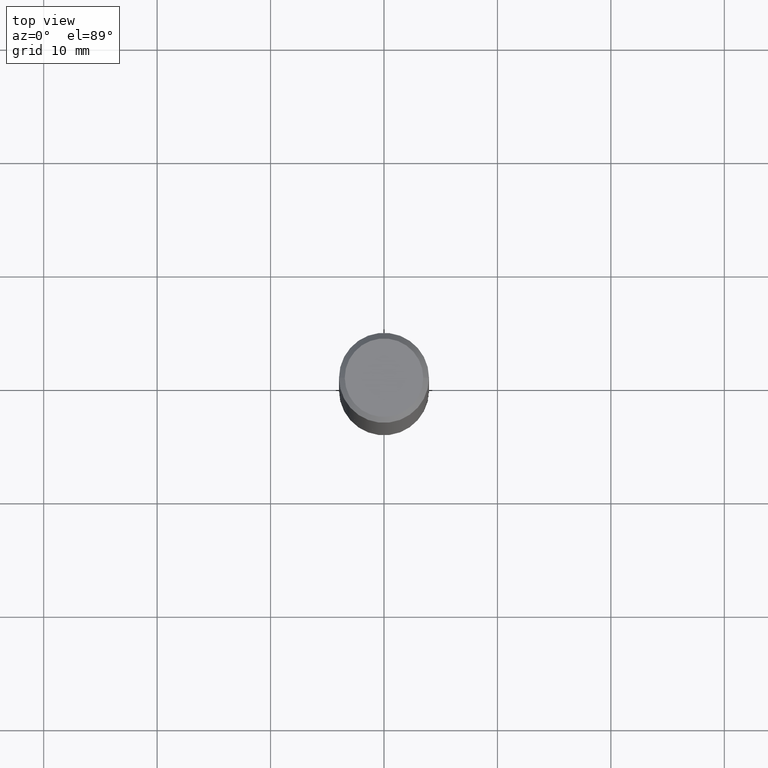
[diagram: clean part render]
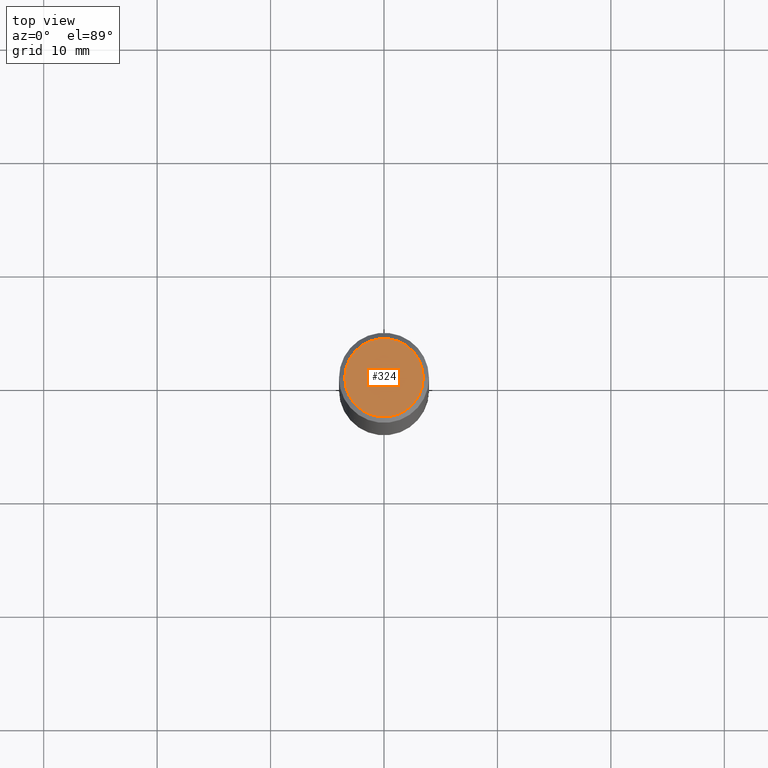
[diagram: same view with one face highlighted and labeled with its STEP entity id]
A machine part, top view. The second image highlights one B-rep face of the part: STEP entity #324.
In plain terms, the highlighted planar face has unit normal (0, -0, -1).
Its self-contained STEP definition (entity closure, byte-faithful):
#9 = VERTEX_POINT ( 'NONE', #216 ) ;
#11 = DIRECTION ( 'NONE',  ( 2.438088387897960049E-29, -3.491481338843145188E-15, -1.000000000000000000 ) ) ;
#23 = AXIS2_PLACEMENT_3D ( 'NONE', #250, #221, #83 ) ;
#32 = CIRCLE ( 'NONE', #204, 0.1362499999999998157 ) ;
#35 = FACE_OUTER_BOUND ( 'NONE', #140, .T. ) ;
#73 = DIRECTION ( 'NONE',  ( 1.000000000000000000, -6.982962677686266711E-15, 4.876176775795935232E-29 ) ) ;
#83 = DIRECTION ( 'NONE',  ( 1.000000000000000000, -6.982962677686266711E-15, 4.876176775795935232E-29 ) ) ;
#113 = VERTEX_POINT ( 'NONE', #338 ) ;
#140 = EDGE_LOOP ( 'NONE', ( #143, #200 ) ) ;
#142 = PLANE ( 'NONE',  #171 ) ;
#143 = ORIENTED_EDGE ( 'NONE', *, *, #297, .T. ) ;
#150 = CARTESIAN_POINT ( 'NONE',  ( 0.000000000000000000, 0.000000000000000000, 0.000000000000000000 ) ) ;
#171 = AXIS2_PLACEMENT_3D ( 'NONE', #270, #11, #323 ) ;
#185 = EDGE_CURVE ( 'NONE', #113, #9, #32, .T. ) ;
#200 = ORIENTED_EDGE ( 'NONE', *, *, #185, .T. ) ;
#204 = AXIS2_PLACEMENT_3D ( 'NONE', #150, #277, #73 ) ;
#216 = CARTESIAN_POINT ( 'NONE',  ( -0.1362499999999998157, 9.863434782231836346E-16, -6.775751096333130074E-30 ) ) ;
#221 = DIRECTION ( 'NONE',  ( -2.445468806185136597E-29, 3.491481338843145583E-15, 1.000000000000000000 ) ) ;
#250 = CARTESIAN_POINT ( 'NONE',  ( 0.000000000000000000, 0.000000000000000000, 0.000000000000000000 ) ) ;
#270 = CARTESIAN_POINT ( 'NONE',  ( 9.514286648347523799E-16, 0.1362499999999998157, -4.757143324173778663E-16 ) ) ;
#277 = DIRECTION ( 'NONE',  ( -2.445468806185136597E-29, 3.491481338843145583E-15, 1.000000000000000000 ) ) ;
#297 = EDGE_CURVE ( 'NONE', #9, #113, #328, .T. ) ;
#323 = DIRECTION ( 'NONE',  ( -1.000000000000000000, 6.982962677686265922E-15, -4.876176775795935793E-29 ) ) ;
#324 = ADVANCED_FACE ( 'NONE', ( #35 ), #142, .F. ) ;
#328 = CIRCLE ( 'NONE', #23, 0.1362499999999998157 ) ;
#338 = CARTESIAN_POINT ( 'NONE',  ( 0.1362499999999998157, -1.038262645562516744E-15, 6.957025900226686667E-30 ) ) ;